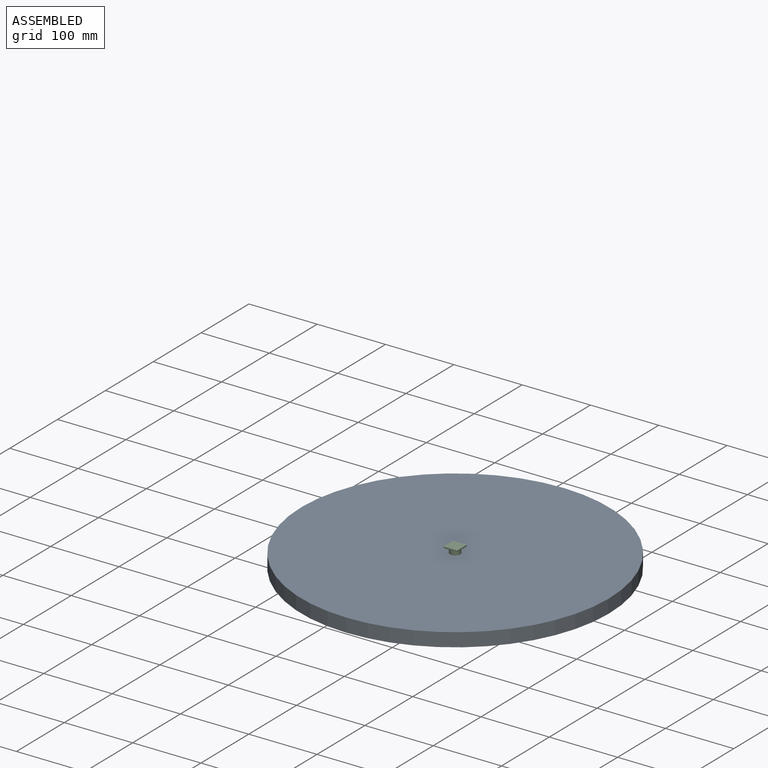
[diagram: assembled view]
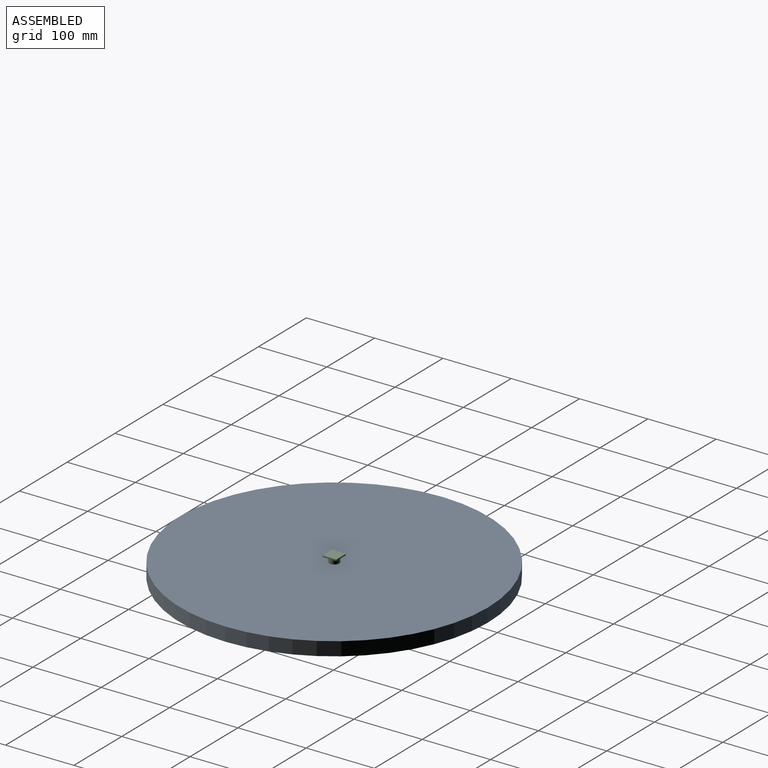
[diagram: assembled view, second angle]
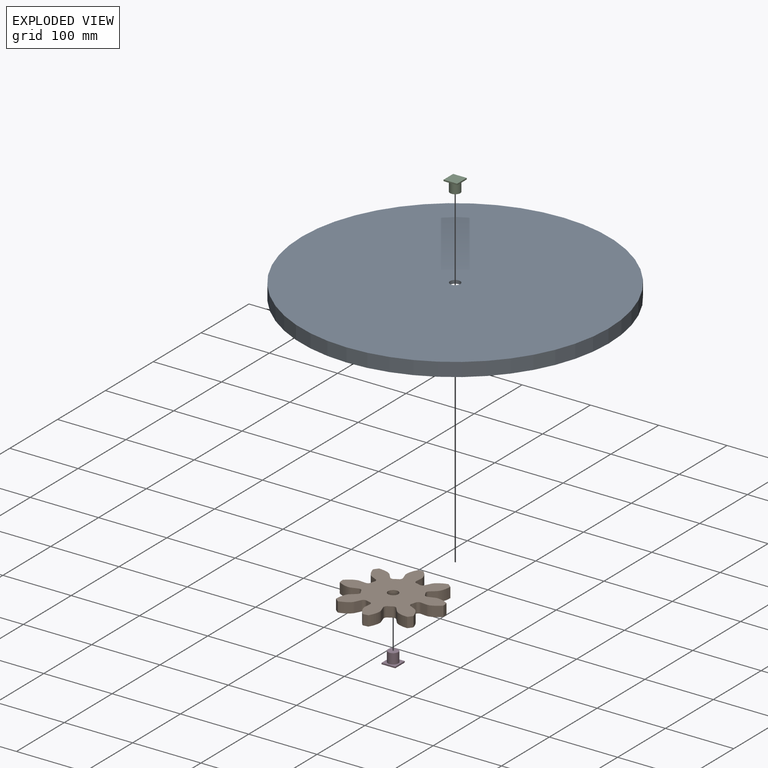
[diagram: exploded view]
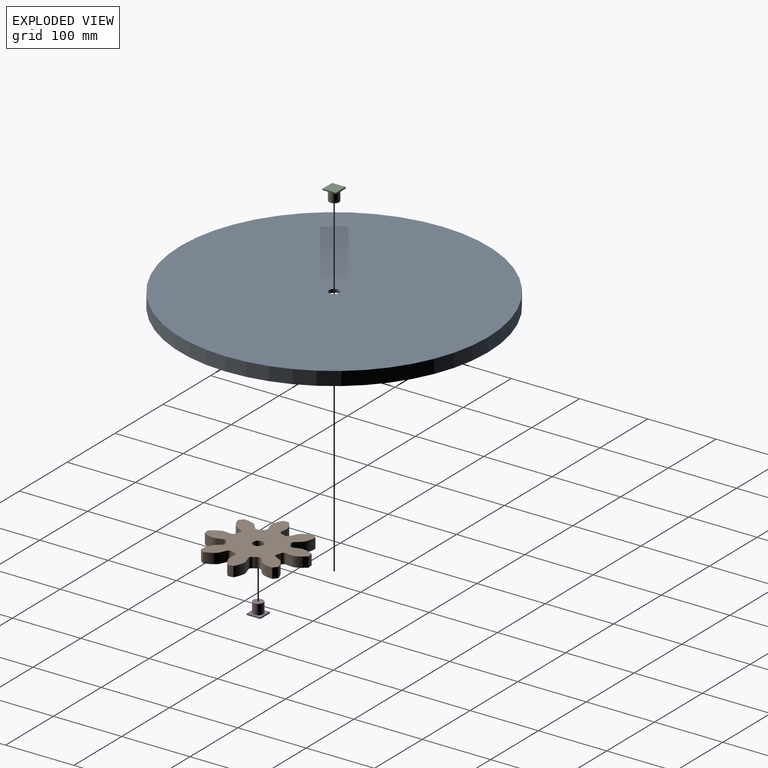
[diagram: exploded view, second angle]
ASSEMBLY  parts=4 mates=2
PART A: 149 faces, bbox 450.9x450.9x20 mm
  f0: plane 450.85x450.85mm, normal (0,0,-1), area 53842.2mm2, adj f2,f4,f5,f6,f7,f8,f9,f10
  f1: cylinder r=7.5mm len=15mm, axis (0,0,-1), area 235.6mm2, adj f3,f100
  f2: cylinder r=225.42mm len=450.85mm, axis (0,0,-1), area 28327.7mm2, adj f0,f3
  f3: plane 450.85x450.85mm, normal (0,0,1), area 159467.8mm2, adj f1,f2
  f4: extruded ~28.34x15mm, area 468.4mm2, adj f0,f99,f100,f101
  f5: cylinder r=165.73mm len=15mm, axis (0,0,-1), area 88.8mm2, adj f0,f100,f101,f102
  f6: extruded ~28.34x15mm, area 468.4mm2, adj f0,f7,f100,f102
  f7: cylinder r=200.42mm len=15mm, axis (0,0,-1), area 165.1mm2, adj f0,f6,f8,f100
  f8: extruded ~30.5x15mm, area 468.4mm2, adj f0,f7,f100,f103
  f9: cylinder r=165.73mm len=15mm, axis (0,0,-1), area 88.8mm2, adj f0,f100,f103,f104
  f10: extruded ~24.26x18.99mm, area 468.4mm2, adj f0,f11,f100,f104
  f11: cylinder r=200.42mm len=15mm, axis (0,0,-1), area 165.1mm2, adj f0,f10,f12,f100
  f12: extruded ~30.58x15mm, area 468.4mm2, adj f0,f11,f100,f105
  f13: cylinder r=165.73mm len=15mm, axis (0,0,-1), area 88.8mm2, adj f0,f100,f105,f106
  f14: extruded ~24.62x18.52mm, area 468.4mm2, adj f0,f15,f100,f106
  f15: cylinder r=200.42mm len=15mm, axis (0,0,-1), area 165.1mm2, adj f0,f14,f16,f100
  f16: extruded ~28.57x15mm, area 468.4mm2, adj f0,f15,f100,f107
  f17: cylinder r=165.73mm len=15mm, axis (0,0,-1), area 88.8mm2, adj f0,f100,f107,f108
  f18: extruded ~28.57x15mm, area 468.4mm2, adj f0,f19,f100,f108
  f19: cylinder r=200.42mm len=15mm, axis (0,0,-1), area 165.1mm2, adj f0,f18,f20,f100
  f20: extruded ~24.62x18.52mm, area 468.4mm2, adj f0,f19,f100,f109
  f21: cylinder r=165.73mm len=15mm, axis (0,0,-1), area 88.8mm2, adj f0,f100,f109,f110
  f22: extruded ~30.58x15mm, area 468.4mm2, adj f0,f23,f100,f110
  f23: cylinder r=200.42mm len=15mm, axis (0,0,-1), area 165.1mm2, adj f0,f22,f24,f100
  f24: extruded ~24.26x18.99mm, area 468.4mm2, adj f0,f23,f100,f111
  f25: cylinder r=165.73mm len=15mm, axis (0,0,-1), area 88.8mm2, adj f0,f100,f111,f112
  f26: extruded ~30.5x15mm, area 468.4mm2, adj f0,f27,f100,f112
  f27: cylinder r=200.42mm len=15mm, axis (0,0,-1), area 165.1mm2, adj f0,f26,f28,f100
  f28: extruded ~28.34x15mm, area 468.4mm2, adj f0,f27,f100,f113
  f29: cylinder r=165.73mm len=15mm, axis (0,0,-1), area 88.8mm2, adj f0,f100,f113,f114
  f30: extruded ~28.34x15mm, area 468.4mm2, adj f0,f31,f100,f114
  f31: cylinder r=200.42mm len=15mm, axis (0,0,-1), area 165.1mm2, adj f0,f30,f32,f100
  f32: extruded ~30.5x15mm, area 468.4mm2, adj f0,f31,f100,f115
  f33: cylinder r=165.73mm len=15mm, axis (0,0,-1), area 88.8mm2, adj f0,f100,f115,f116
  f34: extruded ~24.26x18.99mm, area 468.4mm2, adj f0,f35,f100,f116
  f35: cylinder r=200.42mm len=15mm, axis (0,0,-1), area 165.1mm2, adj f0,f34,f36,f100
  f36: extruded ~30.58x15mm, area 468.4mm2, adj f0,f35,f100,f117
  f37: cylinder r=165.73mm len=15mm, axis (0,0,-1), area 88.8mm2, adj f0,f100,f117,f118
  f38: extruded ~24.62x18.52mm, area 468.4mm2, adj f0,f39,f100,f118
  f39: cylinder r=200.42mm len=15mm, axis (0,0,-1), area 165.1mm2, adj f0,f38,f40,f100
  f40: extruded ~28.57x15mm, area 468.4mm2, adj f0,f39,f100,f119
  f41: cylinder r=165.73mm len=15mm, axis (0,0,-1), area 88.8mm2, adj f0,f100,f119,f120
  f42: extruded ~28.57x15mm, area 468.4mm2, adj f0,f43,f100,f120
  f43: cylinder r=200.42mm len=15mm, axis (0,0,-1), area 165.1mm2, adj f0,f42,f44,f100
  f44: extruded ~24.62x18.52mm, area 468.4mm2, adj f0,f43,f100,f121
  f45: cylinder r=165.73mm len=15mm, axis (0,0,-1), area 88.8mm2, adj f0,f100,f121,f122
  f46: extruded ~30.58x15mm, area 468.4mm2, adj f0,f47,f100,f122
  f47: cylinder r=200.42mm len=15mm, axis (0,0,-1), area 165.1mm2, adj f0,f46,f48,f100
  f48: extruded ~24.26x18.99mm, area 468.4mm2, adj f0,f47,f100,f123
  f49: cylinder r=165.73mm len=15mm, axis (0,0,-1), area 88.8mm2, adj f0,f100,f123,f124
  f50: extruded ~30.5x15mm, area 468.4mm2, adj f0,f51,f100,f124
  f51: cylinder r=200.42mm len=15mm, axis (0,0,-1), area 165.1mm2, adj f0,f50,f52,f100
  f52: extruded ~28.34x15mm, area 468.4mm2, adj f0,f51,f100,f125
  f53: cylinder r=165.73mm len=15mm, axis (0,0,-1), area 88.8mm2, adj f0,f100,f125,f126
  f54: extruded ~28.34x15mm, area 468.4mm2, adj f0,f55,f100,f126
  f55: cylinder r=200.42mm len=15mm, axis (0,0,-1), area 165.1mm2, adj f0,f54,f56,f100
  f56: extruded ~30.5x15mm, area 468.4mm2, adj f0,f55,f100,f127
  f57: cylinder r=165.73mm len=15mm, axis (0,0,-1), area 88.8mm2, adj f0,f100,f127,f128
  f58: extruded ~24.26x18.99mm, area 468.4mm2, adj f0,f59,f100,f128
  f59: cylinder r=200.42mm len=15mm, axis (0,0,-1), area 165.1mm2, adj f0,f58,f60,f100
  f60: extruded ~30.58x15mm, area 468.4mm2, adj f0,f59,f100,f129
  f61: cylinder r=165.73mm len=15mm, axis (0,0,-1), area 88.8mm2, adj f0,f100,f129,f130
  f62: extruded ~24.62x18.52mm, area 468.4mm2, adj f0,f63,f100,f130
  f63: cylinder r=200.42mm len=15mm, axis (0,0,-1), area 165.1mm2, adj f0,f62,f64,f100
  f64: extruded ~28.57x15mm, area 468.4mm2, adj f0,f63,f100,f131
  f65: cylinder r=165.73mm len=15mm, axis (0,0,-1), area 88.8mm2, adj f0,f100,f131,f132
  f66: extruded ~28.57x15mm, area 468.4mm2, adj f0,f67,f100,f132
  f67: cylinder r=200.42mm len=15mm, axis (0,0,-1), area 165.1mm2, adj f0,f66,f68,f100
  f68: extruded ~24.62x18.52mm, area 468.4mm2, adj f0,f67,f100,f133
  f69: cylinder r=165.73mm len=15mm, axis (0,0,-1), area 88.8mm2, adj f0,f100,f133,f134
  f70: extruded ~30.58x15mm, area 468.4mm2, adj f0,f71,f100,f134
  f71: cylinder r=200.42mm len=15mm, axis (0,0,-1), area 165.1mm2, adj f0,f70,f72,f100
  f72: extruded ~24.26x18.99mm, area 468.4mm2, adj f0,f71,f100,f135
  f73: cylinder r=165.73mm len=15mm, axis (0,0,-1), area 88.8mm2, adj f0,f100,f135,f136
  f74: extruded ~30.5x15mm, area 468.4mm2, adj f0,f75,f100,f136
  f75: cylinder r=200.42mm len=15mm, axis (0,0,-1), area 165.1mm2, adj f0,f74,f76,f100
  f76: extruded ~28.34x15mm, area 468.4mm2, adj f0,f75,f100,f137
  f77: cylinder r=165.73mm len=15mm, axis (0,0,-1), area 88.8mm2, adj f0,f100,f137,f138
  f78: extruded ~28.34x15mm, area 468.4mm2, adj f0,f79,f100,f138
  f79: cylinder r=200.42mm len=15mm, axis (0,0,-1), area 165.1mm2, adj f0,f78,f80,f100
  f80: extruded ~30.5x15mm, area 468.4mm2, adj f0,f79,f100,f139
  f81: cylinder r=165.73mm len=15mm, axis (0,0,-1), area 88.8mm2, adj f0,f100,f139,f140
  f82: extruded ~24.26x18.99mm, area 468.4mm2, adj f0,f83,f100,f140
  f83: cylinder r=200.42mm len=15mm, axis (0,0,-1), area 165.1mm2, adj f0,f82,f84,f100
  f84: extruded ~30.58x15mm, area 468.4mm2, adj f0,f83,f100,f141
  f85: cylinder r=165.73mm len=15mm, axis (0,0,-1), area 88.8mm2, adj f0,f100,f141,f142
  f86: extruded ~24.62x18.52mm, area 468.4mm2, adj f0,f87,f100,f142
  f87: cylinder r=200.42mm len=15mm, axis (0,0,-1), area 165.1mm2, adj f0,f86,f88,f100
  f88: extruded ~28.57x15mm, area 468.4mm2, adj f0,f87,f100,f143
  f89: cylinder r=165.73mm len=15mm, axis (0,0,-1), area 88.8mm2, adj f0,f100,f143,f144
  f90: extruded ~28.57x15mm, area 468.4mm2, adj f0,f91,f100,f144
  f91: cylinder r=200.42mm len=15mm, axis (0,0,-1), area 165.1mm2, adj f0,f90,f92,f100
  f92: extruded ~24.62x18.52mm, area 468.4mm2, adj f0,f91,f100,f145
  f93: cylinder r=165.73mm len=15mm, axis (0,0,-1), area 88.8mm2, adj f0,f100,f145,f146
  f94: extruded ~30.58x15mm, area 468.4mm2, adj f0,f95,f100,f146
  f95: cylinder r=200.42mm len=15mm, axis (0,0,-1), area 165.1mm2, adj f0,f94,f96,f100
  f96: extruded ~24.26x18.99mm, area 468.4mm2, adj f0,f95,f100,f147
  f97: cylinder r=165.73mm len=15mm, axis (0,0,-1), area 88.8mm2, adj f0,f100,f147,f148
  f98: extruded ~30.5x15mm, area 468.4mm2, adj f0,f99,f100,f148
  f99: cylinder r=200.42mm len=15mm, axis (0,0,-1), area 165.1mm2, adj f0,f4,f98,f100
  f100: plane 398.81x398.81mm, normal (0,0,-1), area 105625.7mm2, adj f1,f4,f5,f6,f7,f8,f9,f10
  f101: cylinder r=5.58mm len=15mm, axis (0,0,-1), area 128.8mm2, adj f0,f4,f5,f100
  f102: cylinder r=5.58mm len=15mm, axis (0,0,-1), area 128.8mm2, adj f0,f5,f6,f100
  f103: cylinder r=5.58mm len=15mm, axis (0,0,-1), area 128.8mm2, adj f0,f8,f9,f100
  f104: cylinder r=5.58mm len=15mm, axis (0,0,-1), area 128.8mm2, adj f0,f9,f10,f100
  f105: cylinder r=5.58mm len=15mm, axis (0,0,-1), area 128.8mm2, adj f0,f12,f13,f100
  f106: cylinder r=5.58mm len=15mm, axis (0,0,-1), area 128.8mm2, adj f0,f13,f14,f100
  f107: cylinder r=5.58mm len=15mm, axis (0,0,-1), area 128.8mm2, adj f0,f16,f17,f100
  f108: cylinder r=5.58mm len=15mm, axis (0,0,-1), area 128.8mm2, adj f0,f17,f18,f100
  f109: cylinder r=5.58mm len=15mm, axis (0,0,-1), area 128.8mm2, adj f0,f20,f21,f100
  f110: cylinder r=5.58mm len=15mm, axis (0,0,-1), area 128.8mm2, adj f0,f21,f22,f100
  f111: cylinder r=5.58mm len=15mm, axis (0,0,-1), area 128.8mm2, adj f0,f24,f25,f100
  f112: cylinder r=5.58mm len=15mm, axis (0,0,-1), area 128.8mm2, adj f0,f25,f26,f100
  f113: cylinder r=5.58mm len=15mm, axis (0,0,-1), area 128.8mm2, adj f0,f28,f29,f100
  f114: cylinder r=5.58mm len=15mm, axis (0,0,-1), area 128.8mm2, adj f0,f29,f30,f100
  f115: cylinder r=5.58mm len=15mm, axis (0,0,-1), area 128.8mm2, adj f0,f32,f33,f100
  f116: cylinder r=5.58mm len=15mm, axis (0,0,-1), area 128.8mm2, adj f0,f33,f34,f100
  f117: cylinder r=5.58mm len=15mm, axis (0,0,-1), area 128.8mm2, adj f0,f36,f37,f100
  f118: cylinder r=5.58mm len=15mm, axis (0,0,-1), area 128.8mm2, adj f0,f37,f38,f100
  f119: cylinder r=5.58mm len=15mm, axis (0,0,-1), area 128.8mm2, adj f0,f40,f41,f100
  f120: cylinder r=5.58mm len=15mm, axis (0,0,-1), area 128.8mm2, adj f0,f41,f42,f100
  f121: cylinder r=5.58mm len=15mm, axis (0,0,-1), area 128.8mm2, adj f0,f44,f45,f100
  f122: cylinder r=5.58mm len=15mm, axis (0,0,-1), area 128.8mm2, adj f0,f45,f46,f100
  f123: cylinder r=5.58mm len=15mm, axis (0,0,-1), area 128.8mm2, adj f0,f48,f49,f100
  f124: cylinder r=5.58mm len=15mm, axis (0,0,-1), area 128.8mm2, adj f0,f49,f50,f100
  f125: cylinder r=5.58mm len=15mm, axis (0,0,-1), area 128.8mm2, adj f0,f52,f53,f100
  f126: cylinder r=5.58mm len=15mm, axis (0,0,-1), area 128.8mm2, adj f0,f53,f54,f100
  f127: cylinder r=5.58mm len=15mm, axis (0,0,-1), area 128.8mm2, adj f0,f56,f57,f100
  f128: cylinder r=5.58mm len=15mm, axis (0,0,-1), area 128.8mm2, adj f0,f57,f58,f100
  f129: cylinder r=5.58mm len=15mm, axis (0,0,-1), area 128.8mm2, adj f0,f60,f61,f100
  f130: cylinder r=5.58mm len=15mm, axis (0,0,-1), area 128.8mm2, adj f0,f61,f62,f100
  f131: cylinder r=5.58mm len=15mm, axis (0,0,-1), area 128.8mm2, adj f0,f64,f65,f100
  f132: cylinder r=5.58mm len=15mm, axis (0,0,-1), area 128.8mm2, adj f0,f65,f66,f100
  f133: cylinder r=5.58mm len=15mm, axis (0,0,-1), area 128.8mm2, adj f0,f68,f69,f100
  f134: cylinder r=5.58mm len=15mm, axis (0,0,-1), area 128.8mm2, adj f0,f69,f70,f100
  f135: cylinder r=5.58mm len=15mm, axis (0,0,-1), area 128.8mm2, adj f0,f72,f73,f100
  f136: cylinder r=5.58mm len=15mm, axis (0,0,-1), area 128.8mm2, adj f0,f73,f74,f100
  f137: cylinder r=5.58mm len=15mm, axis (0,0,-1), area 128.8mm2, adj f0,f76,f77,f100
  f138: cylinder r=5.58mm len=15mm, axis (0,0,-1), area 128.8mm2, adj f0,f77,f78,f100
  f139: cylinder r=5.58mm len=15mm, axis (0,0,-1), area 128.8mm2, adj f0,f80,f81,f100
  f140: cylinder r=5.58mm len=15mm, axis (0,0,-1), area 128.8mm2, adj f0,f81,f82,f100
  f141: cylinder r=5.58mm len=15mm, axis (0,0,-1), area 128.8mm2, adj f0,f84,f85,f100
  f142: cylinder r=5.58mm len=15mm, axis (0,0,-1), area 128.8mm2, adj f0,f85,f86,f100
  f143: cylinder r=5.58mm len=15mm, axis (0,0,-1), area 128.8mm2, adj f0,f88,f89,f100
  f144: cylinder r=5.58mm len=15mm, axis (0,0,-1), area 128.8mm2, adj f0,f89,f90,f100
  f145: cylinder r=5.58mm len=15mm, axis (0,0,-1), area 128.8mm2, adj f0,f92,f93,f100
  f146: cylinder r=5.58mm len=15mm, axis (0,0,-1), area 128.8mm2, adj f0,f93,f94,f100
  f147: cylinder r=5.58mm len=15mm, axis (0,0,-1), area 128.8mm2, adj f0,f96,f97,f100
  f148: cylinder r=5.58mm len=15mm, axis (0,0,-1), area 128.8mm2, adj f0,f97,f98,f100
PART B: 51 faces, bbox 134x134x15 mm
  f0: extruded ~24.05x15.67mm, area 449.3mm2, adj f31,f32,f33,f34
  f1: cylinder r=38.84mm len=15mm, axis (0,0,-1), area 85.8mm2, adj f32,f33,f34,f35
  f2: extruded ~24.05x15.67mm, area 449.3mm2, adj f3,f32,f33,f35
  f3: cylinder r=70.62mm len=15mm, axis (0,0,-1), area 114.5mm2, adj f2,f4,f32,f33
  f4: extruded ~28.08x15mm, area 449.3mm2, adj f3,f32,f33,f36
  f5: cylinder r=38.84mm len=15mm, axis (0,0,-1), area 85.8mm2, adj f32,f33,f36,f37
  f6: extruded ~28.08x15mm, area 449.3mm2, adj f7,f32,f33,f37
  f7: cylinder r=70.62mm len=15mm, axis (0,0,-1), area 114.5mm2, adj f6,f8,f32,f33
  f8: extruded ~24.05x15.67mm, area 449.3mm2, adj f7,f32,f33,f38
  f9: cylinder r=38.84mm len=15mm, axis (0,0,-1), area 85.8mm2, adj f32,f33,f38,f39
  f10: extruded ~24.05x15.67mm, area 449.3mm2, adj f11,f32,f33,f39
  f11: cylinder r=70.62mm len=15mm, axis (0,0,-1), area 114.5mm2, adj f10,f12,f32,f33
  f12: extruded ~28.08x15mm, area 449.3mm2, adj f11,f32,f33,f40
  f13: cylinder r=38.84mm len=15mm, axis (0,0,-1), area 85.8mm2, adj f32,f33,f40,f41
  f14: extruded ~28.08x15mm, area 449.3mm2, adj f15,f32,f33,f41
  f15: cylinder r=70.62mm len=15mm, axis (0,0,-1), area 114.5mm2, adj f14,f16,f32,f33
  f16: extruded ~24.05x15.67mm, area 449.3mm2, adj f15,f32,f33,f42
  f17: cylinder r=38.84mm len=15mm, axis (0,0,-1), area 85.8mm2, adj f32,f33,f42,f43
  f18: extruded ~24.05x15.67mm, area 449.3mm2, adj f19,f32,f33,f43
  f19: cylinder r=70.62mm len=15mm, axis (0,0,-1), area 114.5mm2, adj f18,f20,f32,f33
  f20: extruded ~28.08x15mm, area 449.3mm2, adj f19,f32,f33,f44
  f21: cylinder r=38.84mm len=15mm, axis (0,0,-1), area 85.8mm2, adj f32,f33,f44,f45
  f22: extruded ~28.08x15mm, area 449.3mm2, adj f23,f32,f33,f45
  f23: cylinder r=70.62mm len=15mm, axis (0,0,-1), area 114.5mm2, adj f22,f24,f32,f33
  f24: extruded ~24.05x15.67mm, area 449.3mm2, adj f23,f32,f33,f46
  f25: cylinder r=38.84mm len=15mm, axis (0,0,-1), area 85.8mm2, adj f32,f33,f46,f47
  f26: extruded ~24.05x15.67mm, area 449.3mm2, adj f27,f32,f33,f47
  f27: cylinder r=70.62mm len=15mm, axis (0,0,-1), area 114.5mm2, adj f26,f28,f32,f33
  f28: extruded ~28.08x15mm, area 449.3mm2, adj f27,f32,f33,f48
  f29: cylinder r=38.84mm len=15mm, axis (0,0,-1), area 85.8mm2, adj f32,f33,f48,f49
  f30: extruded ~28.08x15mm, area 449.3mm2, adj f31,f32,f33,f49
  f31: cylinder r=70.62mm len=15mm, axis (0,0,-1), area 114.5mm2, adj f0,f30,f32,f33
  f32: plane 133.98x133.98mm, normal (0,0,1), area 9313mm2, adj f0,f1,f2,f3,f4,f5,f6,f7
  f33: plane 133.98x133.98mm, normal (0,0,-1), area 9313mm2, adj f0,f1,f2,f3,f4,f5,f6,f7
  f34: cylinder r=4.67mm len=15mm, axis (0,0,-1), area 102.7mm2, adj f0,f1,f32,f33
  f35: cylinder r=4.67mm len=15mm, axis (0,0,-1), area 102.7mm2, adj f1,f2,f32,f33
  f36: cylinder r=4.67mm len=15mm, axis (0,0,-1), area 102.7mm2, adj f4,f5,f32,f33
  f37: cylinder r=4.67mm len=15mm, axis (0,0,-1), area 102.7mm2, adj f5,f6,f32,f33
  f38: cylinder r=4.67mm len=15mm, axis (0,0,-1), area 102.7mm2, adj f8,f9,f32,f33
  f39: cylinder r=4.67mm len=15mm, axis (0,0,-1), area 102.7mm2, adj f9,f10,f32,f33
  f40: cylinder r=4.67mm len=15mm, axis (0,0,-1), area 102.7mm2, adj f12,f13,f32,f33
  f41: cylinder r=4.67mm len=15mm, axis (0,0,-1), area 102.7mm2, adj f13,f14,f32,f33
  f42: cylinder r=4.67mm len=15mm, axis (0,0,-1), area 102.7mm2, adj f16,f17,f32,f33
  f43: cylinder r=4.67mm len=15mm, axis (0,0,-1), area 102.7mm2, adj f17,f18,f32,f33
  f44: cylinder r=4.67mm len=15mm, axis (0,0,-1), area 102.7mm2, adj f20,f21,f32,f33
  f45: cylinder r=4.67mm len=15mm, axis (0,0,-1), area 102.7mm2, adj f21,f22,f32,f33
  f46: cylinder r=4.67mm len=15mm, axis (0,0,-1), area 102.7mm2, adj f24,f25,f32,f33
  f47: cylinder r=4.67mm len=15mm, axis (0,0,-1), area 102.7mm2, adj f25,f26,f32,f33
  f48: cylinder r=4.67mm len=15mm, axis (0,0,-1), area 102.7mm2, adj f28,f29,f32,f33
  f49: cylinder r=4.67mm len=15mm, axis (0,0,-1), area 102.7mm2, adj f29,f30,f32,f33
  f50: cylinder r=7.5mm len=15mm, axis (0,0,1), area 706.9mm2, adj f32,f33
PART C: 8 faces, bbox 20x20x17 mm
  f0: plane 20x2mm, normal (-1,0,0), area 40mm2, adj f1,f3,f4,f5
  f1: plane 20x2mm, normal (0,-1,0), area 40mm2, adj f0,f2,f4,f5
  f2: plane 20x2mm, normal (1,0,0), area 40mm2, adj f1,f3,f4,f5
  f3: plane 20x2mm, normal (0,1,0), area 40mm2, adj f0,f2,f4,f5
  f4: plane 20x20mm, normal (0,0,1), area 223.3mm2, adj f0,f1,f2,f3,f6
  f5: plane 20x20mm, normal (0,0,-1), area 400mm2, adj f0,f1,f2,f3
  f6: cylinder r=7.5mm len=15mm, axis (0,0,-1), area 706.9mm2, adj f4,f7
  f7: plane 15x15mm, normal (0,0,1), area 176.7mm2, adj f6
PART D: same geometry as C
PLACE A rot(axis=(0,0,1),52.1deg) t=(-52.73,64.12,227.23)mm
PLACE B rot(axis=(0,0,1),119.4deg) t=(-87.2,53.78,221.97)mm
PLACE C rot(axis=(-1,0,0),180deg) t=(3.35,52.91,256.73)mm fixed
PLACE D t=(-5.3,-41.94,219.97)mm fixed
MATE revolute B.f1 <-> D.f6  axis (0,0,1) through (-61.38,-53.15,229.47)mm
MATE revolute A.f1 <-> C.f6  axis (0,0,1) through (-52.73,64.12,247.23)mm
